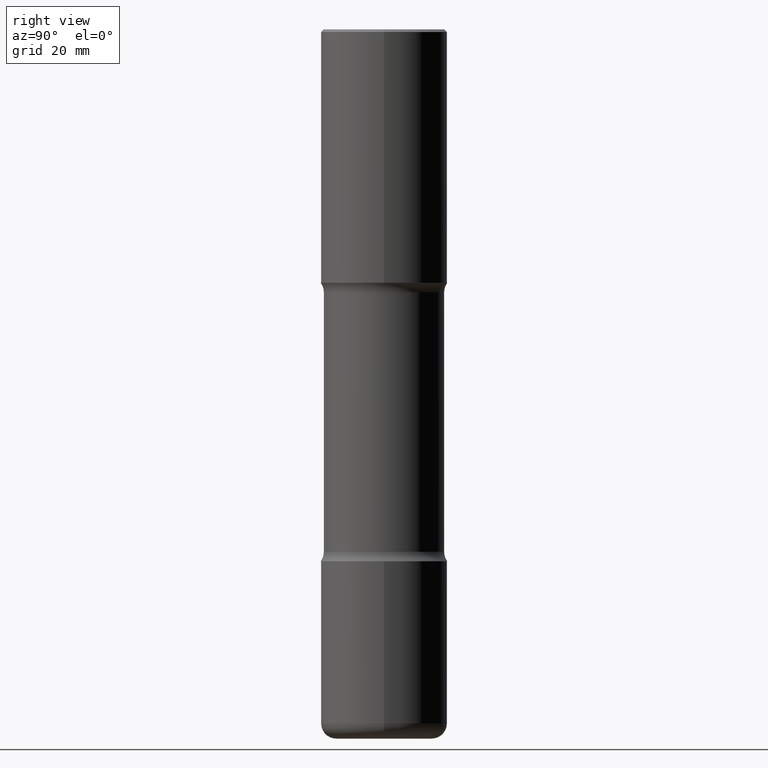
[diagram: clean part render]
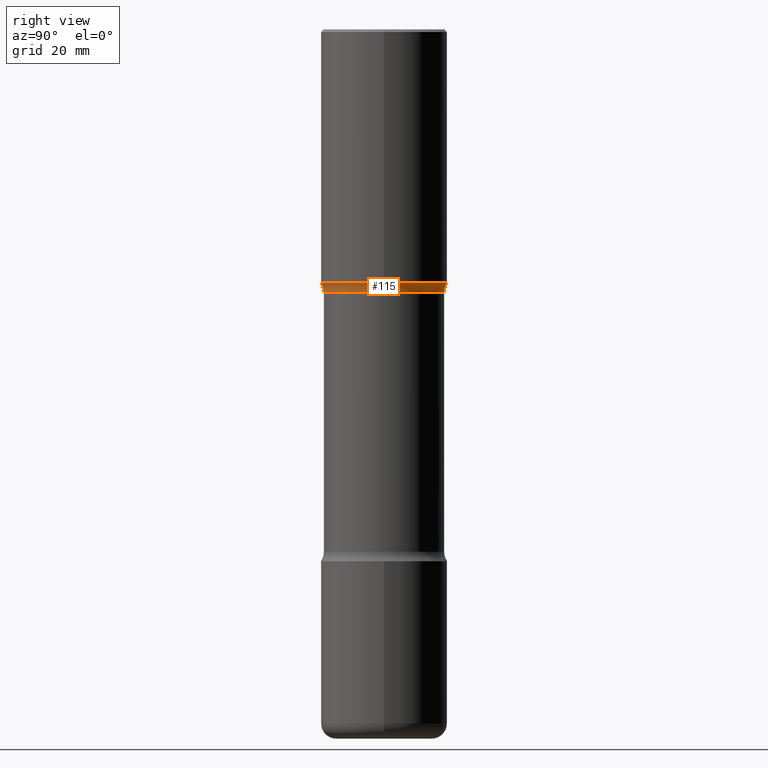
[diagram: same view with one face highlighted and labeled with its STEP entity id]
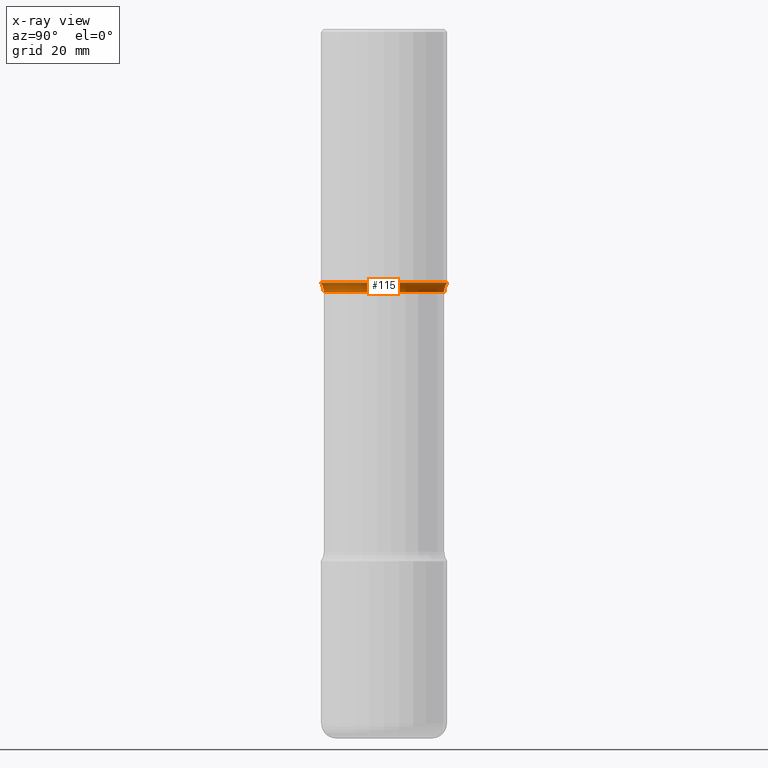
[diagram: x-ray of the same camera — body ghosted, the highlighted face saturated]
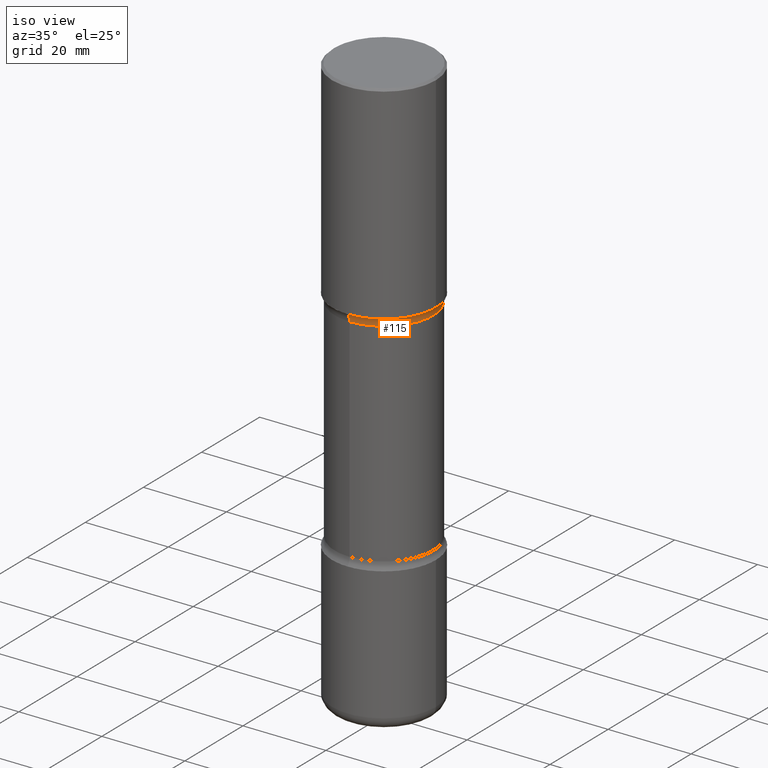
[diagram: same view with one face highlighted and labeled with its STEP entity id]
A machine part, right view. The second image highlights one B-rep face of the part: STEP entity #115.
The next image is the same camera in x-ray: the body ghosted, the highlighted face saturated — about 0% of this face is hidden behind the body in this view.
A second angle (iso view) of the same face is appended — the face is thin or edge-on in the first view.
In plain terms, the highlighted toroidal blend (fillet) surface has major radius 15.0495 mm and minor (blend) radius 3.175 mm.
Its self-contained STEP definition (entity closure, byte-faithful):
#7 = DIRECTION ( 'NONE',  ( 6.860497997771528407E-15, 1.000000000000000000, 0.000000000000000000 ) ) ;
#22 = DIRECTION ( 'NONE',  ( 1.000000000000000000, -6.860497997771530774E-15, 4.842012794319787643E-29 ) ) ;
#24 = VERTEX_POINT ( 'NONE', #242 ) ;
#46 = DIRECTION ( 'NONE',  ( 2.514686486086695474E-29, -3.392357681598433540E-15, -1.000000000000000000 ) ) ;
#74 = DIRECTION ( 'NONE',  ( -1.000000000000000000, 6.982962677686265922E-15, -4.883557194083112340E-29 ) ) ;
#78 = DIRECTION ( 'NONE',  ( 2.514686486086695474E-29, -3.392357681598433540E-15, -1.000000000000000000 ) ) ;
#95 = AXIS2_PLACEMENT_3D ( 'NONE', #525, #442, #357 ) ;
#98 = VERTEX_POINT ( 'NONE', #119 ) ;
#102 = EDGE_LOOP ( 'NONE', ( #184, #135, #191, #530 ) ) ;
#104 = CARTESIAN_POINT ( 'NONE',  ( -4.064845063679584772E-15, -0.5925000000000075762, -2.043031050576251673 ) ) ;
#111 = FACE_OUTER_BOUND ( 'NONE', #102, .T. ) ;
#115 = ADVANCED_FACE ( 'NONE', ( #111 ), #363, .F. ) ;
#119 = CARTESIAN_POINT ( 'NONE',  ( -3.376394089603216058E-15, -0.4921500000000076924, -1.968499999999997918 ) ) ;
#133 = AXIS2_PLACEMENT_3D ( 'NONE', #185, #74, #151 ) ;
#135 = ORIENTED_EDGE ( 'NONE', *, *, #559, .F. ) ;
#151 = DIRECTION ( 'NONE',  ( -6.982962677686265133E-15, -1.000000000000000000, 0.000000000000000000 ) ) ;
#184 = ORIENTED_EDGE ( 'NONE', *, *, #517, .F. ) ;
#185 = CARTESIAN_POINT ( 'NONE',  ( 4.137405386529163040E-15, 0.5924999999999929212, -2.043031050576255225 ) ) ;
#191 = ORIENTED_EDGE ( 'NONE', *, *, #295, .T. ) ;
#194 = CARTESIAN_POINT ( 'NONE',  ( 4.853095759895353255E-29, -7.338093387288914893E-15, -2.043031050576253449 ) ) ;
#206 = DIRECTION ( 'NONE',  ( 6.982962677686265922E-15, 1.000000000000000000, -3.330506545156062313E-15 ) ) ;
#208 = AXIS2_PLACEMENT_3D ( 'NONE', #247, #46, #206 ) ;
#229 = AXIS2_PLACEMENT_3D ( 'NONE', #194, #78, #465 ) ;
#242 = CARTESIAN_POINT ( 'NONE',  ( 3.436665081823346264E-15, 0.4921499999999935371, -1.968500000000001249 ) ) ;
#247 = CARTESIAN_POINT ( 'NONE',  ( 4.664028302684594941E-29, -7.087613470544705473E-15, -1.968499999999999472 ) ) ;
#257 = CARTESIAN_POINT ( 'NONE',  ( 3.264535051818378912E-15, 0.4674999999999928102, -2.043031050576254337 ) ) ;
#277 = CIRCLE ( 'NONE', #133, 0.1250000000000001665 ) ;
#281 = AXIS2_PLACEMENT_3D ( 'NONE', #104, #22, #7 ) ;
#283 = EDGE_CURVE ( 'NONE', #24, #98, #484, .T. ) ;
#295 = EDGE_CURVE ( 'NONE', #358, #24, #277, .T. ) ;
#298 = CARTESIAN_POINT ( 'NONE',  ( -3.291838451780680876E-15, -0.4675000000000075207, -2.043031050576251229 ) ) ;
#357 = DIRECTION ( 'NONE',  ( 6.982962677686265922E-15, 1.000000000000000000, -3.506115072082476004E-15 ) ) ;
#358 = VERTEX_POINT ( 'NONE', #257 ) ;
#363 = TOROIDAL_SURFACE ( 'NONE', #229, 0.5925000000000002487, 0.1250000000000001388 ) ;
#403 = CIRCLE ( 'NONE', #95, 0.4675000000000001377 ) ;
#442 = DIRECTION ( 'NONE',  ( 2.514686486086695474E-29, -3.392357681598433540E-15, -1.000000000000000000 ) ) ;
#443 = VERTEX_POINT ( 'NONE', #298 ) ;
#465 = DIRECTION ( 'NONE',  ( 6.982962677686265133E-15, 1.000000000000000000, -3.392357681598433540E-15 ) ) ;
#484 = CIRCLE ( 'NONE', #208, 0.4921500000000005870 ) ;
#488 = CIRCLE ( 'NONE', #281, 0.1250000000000001665 ) ;
#517 = EDGE_CURVE ( 'NONE', #443, #98, #488, .T. ) ;
#525 = CARTESIAN_POINT ( 'NONE',  ( 4.851450528362542528E-29, -7.340449452484660690E-15, -2.043031050576253005 ) ) ;
#530 = ORIENTED_EDGE ( 'NONE', *, *, #283, .T. ) ;
#559 = EDGE_CURVE ( 'NONE', #358, #443, #403, .T. ) ;